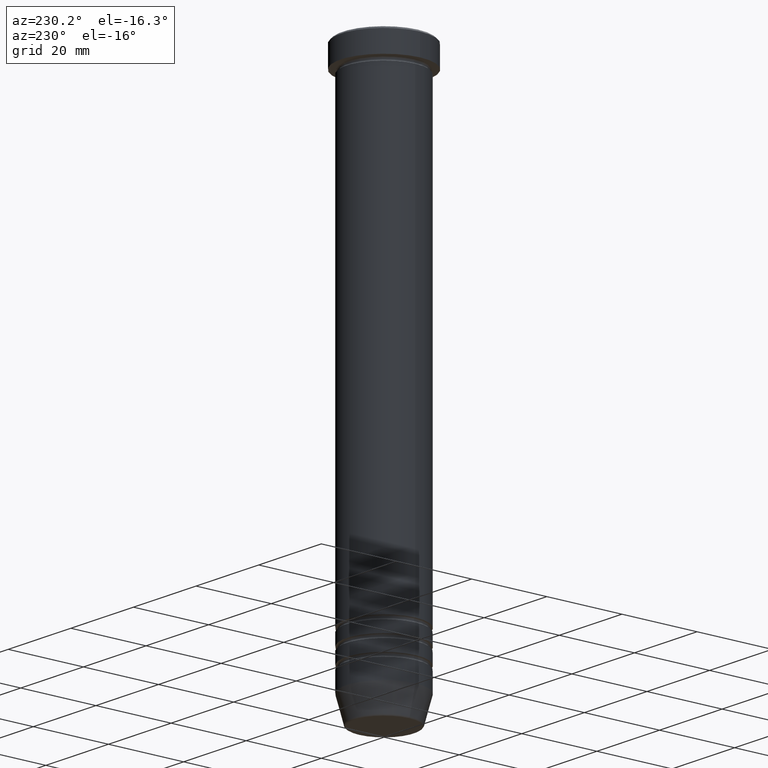
[diagram: clean part render]
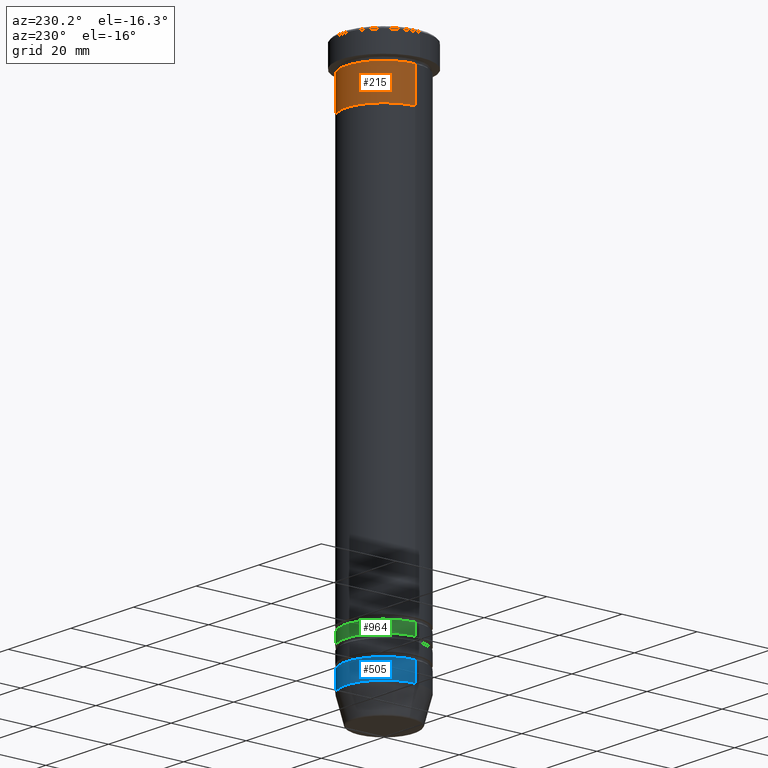
[diagram: same view with three faces highlighted in distinct colors, each labeled with its STEP entity id]
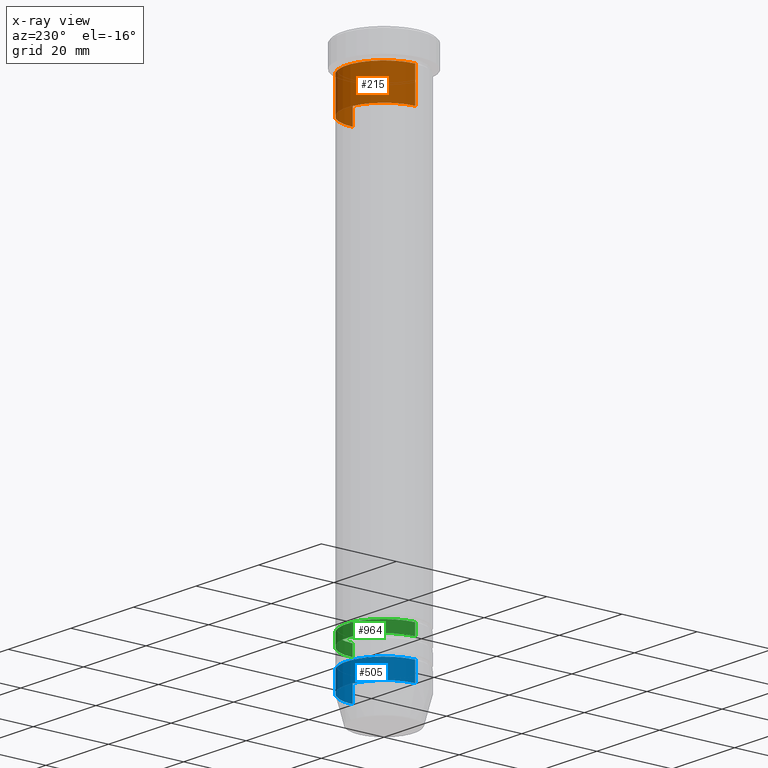
[diagram: x-ray of the same camera — body ghosted, the three highlighted faces saturated]
A machine part, auxiliary view with three faces highlighted in distinct colors.
The next image is the same camera in x-ray (body ghosted, the three faces saturated) — at least one of them is partly hidden behind the body in this view.
Their STEP definitions:

[orange] entity #215 — the highlighted cylindrical surface (partial cylindrical patch) has radius 10 mm, axis along (-0, -0, 1).
#43 = LINE ( 'NONE', #312, #801 ) ;
#47 = EDGE_CURVE ( 'NONE', #120, #945, #1080, .T. ) ;
#60 = ORIENTED_EDGE ( 'NONE', *, *, #47, .T. ) ;
#90 = EDGE_CURVE ( 'NONE', #1104, #707, #1029, .T. ) ;
#120 = VERTEX_POINT ( 'NONE', #442 ) ;
#128 = EDGE_LOOP ( 'NONE', ( #60, #1007, #243, #219 ) ) ;
#215 = ADVANCED_FACE ( 'NONE', ( #375 ), #652, .T. ) ;
#219 = ORIENTED_EDGE ( 'NONE', *, *, #1110, .F. ) ;
#242 = DIRECTION ( 'NONE',  ( 1.000000000000000000, 0.000000000000000000, 0.000000000000000000 ) ) ;
#243 = ORIENTED_EDGE ( 'NONE', *, *, #90, .F. ) ;
#260 = CARTESIAN_POINT ( 'NONE',  ( 0.000000000000000000, 0.000000000000000000, -6.999999999999999112 ) ) ;
#312 = CARTESIAN_POINT ( 'NONE',  ( 10.00000000000000000, 0.000000000000000000, 0.000000000000000000 ) ) ;
#339 = AXIS2_PLACEMENT_3D ( 'NONE', #559, #1071, #466 ) ;
#375 = FACE_OUTER_BOUND ( 'NONE', #128, .T. ) ;
#397 = CARTESIAN_POINT ( 'NONE',  ( 10.00000000000000000, 0.000000000000000000, -6.999999999999999112 ) ) ;
#442 = CARTESIAN_POINT ( 'NONE',  ( 10.00000000000000000, 0.000000000000000000, -16.00000000000000000 ) ) ;
#466 = DIRECTION ( 'NONE',  ( 1.000000000000000000, 0.000000000000000000, 0.000000000000000000 ) ) ;
#535 = DIRECTION ( 'NONE',  ( -0.000000000000000000, -0.000000000000000000, 1.000000000000000000 ) ) ;
#549 = DIRECTION ( 'NONE',  ( 1.000000000000000000, 0.000000000000000000, 0.000000000000000000 ) ) ;
#559 = CARTESIAN_POINT ( 'NONE',  ( 0.000000000000000000, 0.000000000000000000, 0.000000000000000000 ) ) ;
#606 = LINE ( 'NONE', #1119, #962 ) ;
#652 = CYLINDRICAL_SURFACE ( 'NONE', #339, 10.00000000000000000 ) ;
#698 = CARTESIAN_POINT ( 'NONE',  ( -10.00000000000000000, 1.224646799147353256E-15, -16.00000000000000000 ) ) ;
#707 = VERTEX_POINT ( 'NONE', #840 ) ;
#720 = CARTESIAN_POINT ( 'NONE',  ( 0.000000000000000000, 0.000000000000000000, -16.00000000000000000 ) ) ;
#801 = VECTOR ( 'NONE', #1114, 1000.000000000000000 ) ;
#837 = DIRECTION ( 'NONE',  ( -0.000000000000000000, -0.000000000000000000, 1.000000000000000000 ) ) ;
#840 = CARTESIAN_POINT ( 'NONE',  ( -10.00000000000000000, 1.224646799147353256E-15, -6.999999999999999112 ) ) ;
#868 = AXIS2_PLACEMENT_3D ( 'NONE', #260, #837, #549 ) ;
#883 = DIRECTION ( 'NONE',  ( -0.000000000000000000, -0.000000000000000000, 1.000000000000000000 ) ) ;
#922 = EDGE_CURVE ( 'NONE', #945, #707, #606, .T. ) ;
#945 = VERTEX_POINT ( 'NONE', #698 ) ;
#962 = VECTOR ( 'NONE', #535, 1000.000000000000000 ) ;
#975 = AXIS2_PLACEMENT_3D ( 'NONE', #720, #883, #242 ) ;
#1007 = ORIENTED_EDGE ( 'NONE', *, *, #922, .T. ) ;
#1029 = CIRCLE ( 'NONE', #868, 10.00000000000000000 ) ;
#1071 = DIRECTION ( 'NONE',  ( -0.000000000000000000, -0.000000000000000000, 1.000000000000000000 ) ) ;
#1080 = CIRCLE ( 'NONE', #975, 10.00000000000000000 ) ;
#1104 = VERTEX_POINT ( 'NONE', #397 ) ;
#1110 = EDGE_CURVE ( 'NONE', #120, #1104, #43, .T. ) ;
#1114 = DIRECTION ( 'NONE',  ( -0.000000000000000000, -0.000000000000000000, 1.000000000000000000 ) ) ;
#1119 = CARTESIAN_POINT ( 'NONE',  ( -10.00000000000000000, 1.224646799147353256E-15, 0.000000000000000000 ) ) ;

[blue] entity #505 — the highlighted cylindrical surface (partial cylindrical patch) has radius 10 mm, axis along (-0, -0, 1).
#57 = CARTESIAN_POINT ( 'NONE',  ( -10.00000000000000000, 1.224646799147353256E-15, 0.000000000000000000 ) ) ;
#65 = CARTESIAN_POINT ( 'NONE',  ( -10.00000000000000000, 1.224646799147353256E-15, -134.0000000000000000 ) ) ;
#121 = CARTESIAN_POINT ( 'NONE',  ( 0.000000000000000000, 0.000000000000000000, -139.0000000000000000 ) ) ;
#148 = EDGE_LOOP ( 'NONE', ( #580, #512, #658, #435 ) ) ;
#187 = EDGE_CURVE ( 'NONE', #386, #437, #354, .T. ) ;
#189 = AXIS2_PLACEMENT_3D ( 'NONE', #289, #727, #1079 ) ;
#218 = DIRECTION ( 'NONE',  ( -0.000000000000000000, -0.000000000000000000, 1.000000000000000000 ) ) ;
#278 = EDGE_CURVE ( 'NONE', #690, #437, #316, .T. ) ;
#289 = CARTESIAN_POINT ( 'NONE',  ( 0.000000000000000000, 0.000000000000000000, -134.0000000000000000 ) ) ;
#316 = LINE ( 'NONE', #57, #428 ) ;
#354 = CIRCLE ( 'NONE', #189, 10.00000000000000000 ) ;
#367 = DIRECTION ( 'NONE',  ( -0.000000000000000000, -0.000000000000000000, 1.000000000000000000 ) ) ;
#386 = VERTEX_POINT ( 'NONE', #1141 ) ;
#408 = VECTOR ( 'NONE', #1086, 1000.000000000000000 ) ;
#428 = VECTOR ( 'NONE', #218, 1000.000000000000000 ) ;
#435 = ORIENTED_EDGE ( 'NONE', *, *, #527, .F. ) ;
#437 = VERTEX_POINT ( 'NONE', #65 ) ;
#457 = DIRECTION ( 'NONE',  ( 1.000000000000000000, 0.000000000000000000, 0.000000000000000000 ) ) ;
#461 = CARTESIAN_POINT ( 'NONE',  ( 10.00000000000000000, 0.000000000000000000, -139.0000000000000000 ) ) ;
#505 = ADVANCED_FACE ( 'NONE', ( #895 ), #519, .T. ) ;
#512 = ORIENTED_EDGE ( 'NONE', *, *, #278, .T. ) ;
#519 = CYLINDRICAL_SURFACE ( 'NONE', #722, 10.00000000000000000 ) ;
#527 = EDGE_CURVE ( 'NONE', #1072, #386, #999, .T. ) ;
#556 = DIRECTION ( 'NONE',  ( 1.000000000000000000, 0.000000000000000000, 0.000000000000000000 ) ) ;
#567 = CIRCLE ( 'NONE', #744, 10.00000000000000000 ) ;
#580 = ORIENTED_EDGE ( 'NONE', *, *, #1035, .T. ) ;
#658 = ORIENTED_EDGE ( 'NONE', *, *, #187, .F. ) ;
#690 = VERTEX_POINT ( 'NONE', #1089 ) ;
#722 = AXIS2_PLACEMENT_3D ( 'NONE', #735, #905, #457 ) ;
#727 = DIRECTION ( 'NONE',  ( -0.000000000000000000, -0.000000000000000000, 1.000000000000000000 ) ) ;
#735 = CARTESIAN_POINT ( 'NONE',  ( 0.000000000000000000, 0.000000000000000000, 0.000000000000000000 ) ) ;
#744 = AXIS2_PLACEMENT_3D ( 'NONE', #121, #367, #556 ) ;
#895 = FACE_OUTER_BOUND ( 'NONE', #148, .T. ) ;
#905 = DIRECTION ( 'NONE',  ( -0.000000000000000000, -0.000000000000000000, 1.000000000000000000 ) ) ;
#999 = LINE ( 'NONE', #1078, #408 ) ;
#1035 = EDGE_CURVE ( 'NONE', #1072, #690, #567, .T. ) ;
#1072 = VERTEX_POINT ( 'NONE', #461 ) ;
#1078 = CARTESIAN_POINT ( 'NONE',  ( 10.00000000000000000, 0.000000000000000000, 0.000000000000000000 ) ) ;
#1079 = DIRECTION ( 'NONE',  ( 1.000000000000000000, 0.000000000000000000, 0.000000000000000000 ) ) ;
#1086 = DIRECTION ( 'NONE',  ( -0.000000000000000000, -0.000000000000000000, 1.000000000000000000 ) ) ;
#1089 = CARTESIAN_POINT ( 'NONE',  ( -10.00000000000000000, 1.224646799147353256E-15, -139.0000000000000000 ) ) ;
#1141 = CARTESIAN_POINT ( 'NONE',  ( 10.00000000000000000, 0.000000000000000000, -134.0000000000000000 ) ) ;

[green] entity #964 — the highlighted cylindrical surface (partial cylindrical patch) has radius 10 mm, axis along (-0, -0, 1).
#26 = AXIS2_PLACEMENT_3D ( 'NONE', #610, #432, #72 ) ;
#72 = DIRECTION ( 'NONE',  ( 1.000000000000000000, 0.000000000000000000, 0.000000000000000000 ) ) ;
#85 = AXIS2_PLACEMENT_3D ( 'NONE', #542, #740, #995 ) ;
#103 = CIRCLE ( 'NONE', #85, 10.00000000000000000 ) ;
#141 = EDGE_LOOP ( 'NONE', ( #360, #963, #1149, #687 ) ) ;
#298 = VECTOR ( 'NONE', #1016, 1000.000000000000000 ) ;
#299 = LINE ( 'NONE', #490, #298 ) ;
#322 = VERTEX_POINT ( 'NONE', #657 ) ;
#324 = EDGE_CURVE ( 'NONE', #322, #842, #299, .T. ) ;
#343 = CARTESIAN_POINT ( 'NONE',  ( 0.000000000000000000, 0.000000000000000000, 0.000000000000000000 ) ) ;
#360 = ORIENTED_EDGE ( 'NONE', *, *, #473, .T. ) ;
#387 = EDGE_CURVE ( 'NONE', #973, #613, #405, .T. ) ;
#405 = LINE ( 'NONE', #1041, #833 ) ;
#432 = DIRECTION ( 'NONE',  ( -0.000000000000000000, -0.000000000000000000, 1.000000000000000000 ) ) ;
#447 = CIRCLE ( 'NONE', #26, 9.999999999999998224 ) ;
#473 = EDGE_CURVE ( 'NONE', #973, #322, #447, .T. ) ;
#490 = CARTESIAN_POINT ( 'NONE',  ( -9.999999999999998224, 1.224646799147353059E-15, 0.000000000000000000 ) ) ;
#542 = CARTESIAN_POINT ( 'NONE',  ( 0.000000000000000000, 0.000000000000000000, -126.0000000000000284 ) ) ;
#590 = CARTESIAN_POINT ( 'NONE',  ( -10.00000000000000000, 1.224646799147353256E-15, -126.0000000000000284 ) ) ;
#610 = CARTESIAN_POINT ( 'NONE',  ( 0.000000000000000000, 0.000000000000000000, -129.0000000000000284 ) ) ;
#613 = VERTEX_POINT ( 'NONE', #1063 ) ;
#657 = CARTESIAN_POINT ( 'NONE',  ( -9.999999999999998224, 1.224646799147353059E-15, -129.0000000000000284 ) ) ;
#687 = ORIENTED_EDGE ( 'NONE', *, *, #387, .F. ) ;
#706 = AXIS2_PLACEMENT_3D ( 'NONE', #343, #709, #1054 ) ;
#709 = DIRECTION ( 'NONE',  ( -0.000000000000000000, -0.000000000000000000, 1.000000000000000000 ) ) ;
#740 = DIRECTION ( 'NONE',  ( -0.000000000000000000, -0.000000000000000000, 1.000000000000000000 ) ) ;
#792 = FACE_OUTER_BOUND ( 'NONE', #141, .T. ) ;
#833 = VECTOR ( 'NONE', #954, 1000.000000000000000 ) ;
#842 = VERTEX_POINT ( 'NONE', #590 ) ;
#843 = CARTESIAN_POINT ( 'NONE',  ( 9.999999999999998224, 0.000000000000000000, -129.0000000000000284 ) ) ;
#954 = DIRECTION ( 'NONE',  ( -0.000000000000000000, -0.000000000000000000, 1.000000000000000000 ) ) ;
#963 = ORIENTED_EDGE ( 'NONE', *, *, #324, .T. ) ;
#964 = ADVANCED_FACE ( 'NONE', ( #792 ), #1138, .T. ) ;
#973 = VERTEX_POINT ( 'NONE', #843 ) ;
#995 = DIRECTION ( 'NONE',  ( 1.000000000000000000, 0.000000000000000000, 0.000000000000000000 ) ) ;
#1016 = DIRECTION ( 'NONE',  ( -0.000000000000000000, -0.000000000000000000, 1.000000000000000000 ) ) ;
#1017 = EDGE_CURVE ( 'NONE', #613, #842, #103, .T. ) ;
#1041 = CARTESIAN_POINT ( 'NONE',  ( 9.999999999999998224, 0.000000000000000000, 0.000000000000000000 ) ) ;
#1054 = DIRECTION ( 'NONE',  ( 1.000000000000000000, 0.000000000000000000, 0.000000000000000000 ) ) ;
#1063 = CARTESIAN_POINT ( 'NONE',  ( 10.00000000000000000, 0.000000000000000000, -126.0000000000000284 ) ) ;
#1138 = CYLINDRICAL_SURFACE ( 'NONE', #706, 9.999999999999998224 ) ;
#1149 = ORIENTED_EDGE ( 'NONE', *, *, #1017, .F. ) ;